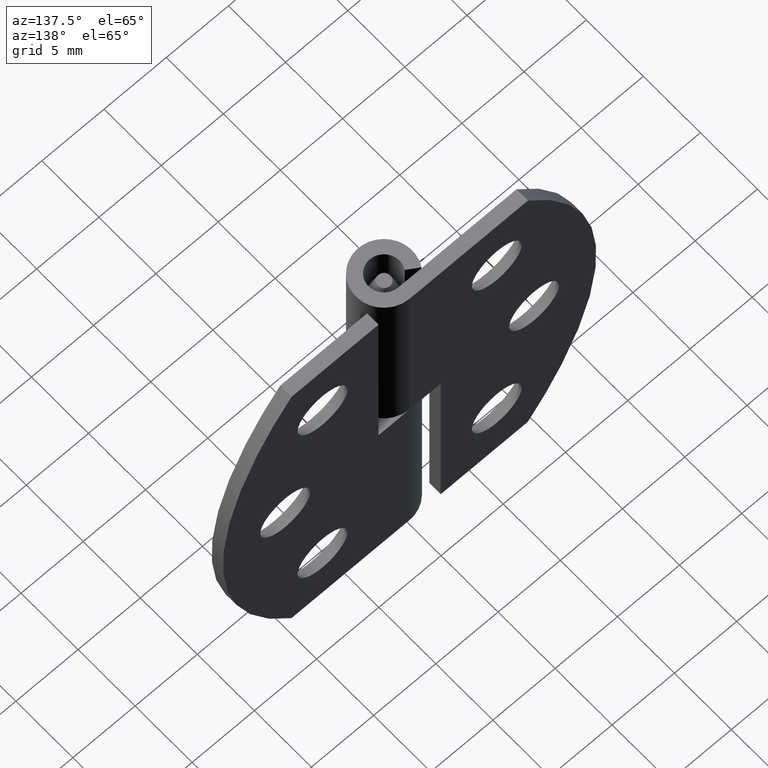
[diagram: clean part render]
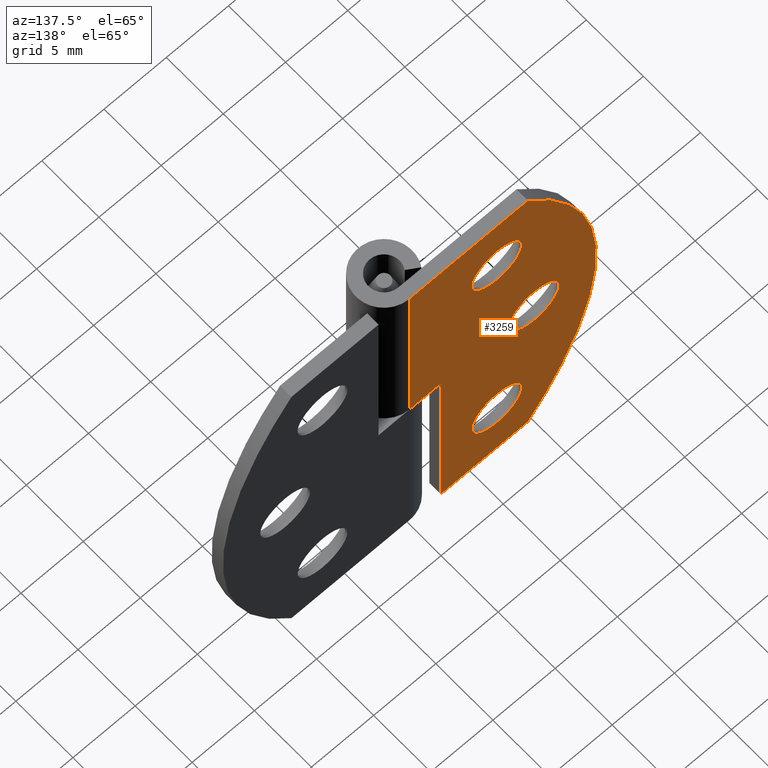
[diagram: same view with one face highlighted and labeled with its STEP entity id]
A machine part, auxiliary view. The second image highlights one B-rep face of the part: STEP entity #3259.
In plain terms, the highlighted face is a freeform B-spline surface patch.
Its self-contained STEP definition (entity closure, byte-faithful):
#2108=CARTESIAN_POINT('',(-5.013980947273408,2.250000000000000,5.736068469321533));
#2109=VERTEX_POINT('',#2108);
#2115=CARTESIAN_POINT('',(-6.999999999999800,2.250000000000000,3.500000000000100));
#2116=VERTEX_POINT('',#2115);
#2117=CARTESIAN_POINT('',(-5.013980947273408,2.250000000000000,5.736068469321533));
#2118=CARTESIAN_POINT('',(-4.999999999999801,2.250000000000000,5.618448239311921));
#2119=CARTESIAN_POINT('',(-4.999999999999800,2.250000000000000,5.500000000000100));
#2120=CARTESIAN_POINT('',(-4.999999999999801,2.250000000000000,3.500000000000100));
#2121=CARTESIAN_POINT('',(-6.999999999999800,2.250000000000000,3.500000000000100));
#2129=(BOUNDED_CURVE()B_SPLINE_CURVE(2,(#2117,#2118,#2119,#2120,#2121),.UNSPECIFIED.,.F.,.U.)B_SPLINE_CURVE_WITH_KNOTS((3,2,3),(0.229562473514297,0.250000000000000,0.500000000000000),.UNSPECIFIED.)CURVE()GEOMETRIC_REPRESENTATION_ITEM()RATIONAL_B_SPLINE_CURVE((0.956026754185245,0.976055948332069,1.0,0.707106781186548,1.0))REPRESENTATION_ITEM(''));
#2130=EDGE_CURVE('',#2109,#2116,#2129,.T.);
#2132=CARTESIAN_POINT('',(-8.996269596837500,2.250000000000000,5.377902920831751));
#2133=VERTEX_POINT('',#2132);
#2134=CARTESIAN_POINT('',(-6.999999999999800,2.250000000000000,3.500000000000100));
#2135=CARTESIAN_POINT('',(-8.881412133624934,2.250000000000000,3.500000000000100));
#2136=CARTESIAN_POINT('',(-8.996269596837500,2.249999999999999,5.377902920831751));
#2144=(BOUNDED_CURVE()B_SPLINE_CURVE(2,(#2134,#2135,#2136),.UNSPECIFIED.,.F.,.U.)B_SPLINE_CURVE_WITH_KNOTS((3,3),(0.500000000000000,0.739332962224919),.UNSPECIFIED.)CURVE()GEOMETRIC_REPRESENTATION_ITEM()RATIONAL_B_SPLINE_CURVE((1.0,0.719603993303141,0.976072041636661))REPRESENTATION_ITEM(''));
#2145=EDGE_CURVE('',#2116,#2133,#2144,.T.);
#2179=CARTESIAN_POINT('',(-6.999999999999800,2.250000000000000,7.500000000000100));
#2180=VERTEX_POINT('',#2179);
#2181=CARTESIAN_POINT('',(-8.996269596837500,2.250000000000000,5.377902920831752));
#2182=CARTESIAN_POINT('',(-8.999999999999799,2.250000000000000,5.438894473304011));
#2183=CARTESIAN_POINT('',(-8.999999999999799,2.250000000000000,5.500000000000100));
#2184=CARTESIAN_POINT('',(-8.999999999999799,2.250000000000000,7.500000000000099));
#2185=CARTESIAN_POINT('',(-6.999999999999800,2.250000000000000,7.500000000000100));
#2193=(BOUNDED_CURVE()B_SPLINE_CURVE(2,(#2181,#2182,#2183,#2184,#2185),.UNSPECIFIED.,.F.,.U.)B_SPLINE_CURVE_WITH_KNOTS((3,2,3),(0.739332962224917,0.750000000000000,1.0),.UNSPECIFIED.)CURVE()GEOMETRIC_REPRESENTATION_ITEM()RATIONAL_B_SPLINE_CURVE((0.976072041636658,0.987502787883406,1.0,0.707106781186548,1.0))REPRESENTATION_ITEM(''));
#2194=EDGE_CURVE('',#2133,#2180,#2193,.T.);
#2196=CARTESIAN_POINT('',(-6.999999999999800,2.250000000000000,7.500000000000100));
#2197=CARTESIAN_POINT('',(-5.223650948111324,2.250000000000000,7.500000000000099));
#2198=CARTESIAN_POINT('',(-5.013980947273408,2.250000000000000,5.736068469321533));
#2206=(BOUNDED_CURVE()B_SPLINE_CURVE(2,(#2196,#2197,#2198),.UNSPECIFIED.,.F.,.U.)B_SPLINE_CURVE_WITH_KNOTS((3,3),(0.0,0.229562473514297),.UNSPECIFIED.)CURVE()GEOMETRIC_REPRESENTATION_ITEM()RATIONAL_B_SPLINE_CURVE((1.0,0.731050832854479,0.956026754185245))REPRESENTATION_ITEM(''));
#2207=EDGE_CURVE('',#2180,#2109,#2206,.T.);
#2452=CARTESIAN_POINT('',(-5.013980947273408,2.250000000000000,25.736068469321442));
#2453=VERTEX_POINT('',#2452);
#2459=CARTESIAN_POINT('',(-6.999999999999800,2.250000000000000,23.500000000000000));
#2460=VERTEX_POINT('',#2459);
#2461=CARTESIAN_POINT('',(-5.013980947273408,2.250000000000000,25.736068469321442));
#2462=CARTESIAN_POINT('',(-4.999999999999800,2.250000000000000,25.618448239311821));
#2463=CARTESIAN_POINT('',(-4.999999999999800,2.250000000000000,25.500000000000000));
#2464=CARTESIAN_POINT('',(-4.999999999999801,2.250000000000000,23.500000000000004));
#2465=CARTESIAN_POINT('',(-6.999999999999800,2.250000000000000,23.500000000000000));
#2473=(BOUNDED_CURVE()B_SPLINE_CURVE(2,(#2461,#2462,#2463,#2464,#2465),.UNSPECIFIED.,.F.,.U.)B_SPLINE_CURVE_WITH_KNOTS((3,2,3),(0.229562473514297,0.250000000000000,0.500000000000000),.UNSPECIFIED.)CURVE()GEOMETRIC_REPRESENTATION_ITEM()RATIONAL_B_SPLINE_CURVE((0.956026754185244,0.976055948332068,1.0,0.707106781186548,1.0))REPRESENTATION_ITEM(''));
#2474=EDGE_CURVE('',#2453,#2460,#2473,.T.);
#2476=CARTESIAN_POINT('',(-8.996269596837500,2.250000000000000,25.377902920831652));
#2477=VERTEX_POINT('',#2476);
#2478=CARTESIAN_POINT('',(-6.999999999999800,2.250000000000000,23.500000000000000));
#2479=CARTESIAN_POINT('',(-8.881412133624934,2.250000000000000,23.500000000000000));
#2480=CARTESIAN_POINT('',(-8.996269596837500,2.250000000000000,25.377902920831655));
#2488=(BOUNDED_CURVE()B_SPLINE_CURVE(2,(#2478,#2479,#2480),.UNSPECIFIED.,.F.,.U.)B_SPLINE_CURVE_WITH_KNOTS((3,3),(0.500000000000000,0.739332962224919),.UNSPECIFIED.)CURVE()GEOMETRIC_REPRESENTATION_ITEM()RATIONAL_B_SPLINE_CURVE((1.0,0.719603993303141,0.976072041636661))REPRESENTATION_ITEM(''));
#2489=EDGE_CURVE('',#2460,#2477,#2488,.T.);
#2523=CARTESIAN_POINT('',(-6.999999999999800,2.250000000000000,27.500000000000000));
#2524=VERTEX_POINT('',#2523);
#2525=CARTESIAN_POINT('',(-8.996269596837500,2.250000000000000,25.377902920831655));
#2526=CARTESIAN_POINT('',(-8.999999999999799,2.250000000000000,25.438894473303915));
#2527=CARTESIAN_POINT('',(-8.999999999999799,2.250000000000000,25.500000000000000));
#2528=CARTESIAN_POINT('',(-8.999999999999799,2.250000000000000,27.500000000000004));
#2529=CARTESIAN_POINT('',(-6.999999999999800,2.250000000000000,27.500000000000000));
#2537=(BOUNDED_CURVE()B_SPLINE_CURVE(2,(#2525,#2526,#2527,#2528,#2529),.UNSPECIFIED.,.F.,.U.)B_SPLINE_CURVE_WITH_KNOTS((3,2,3),(0.739332962224917,0.750000000000000,1.0),.UNSPECIFIED.)CURVE()GEOMETRIC_REPRESENTATION_ITEM()RATIONAL_B_SPLINE_CURVE((0.976072041636658,0.987502787883406,1.0,0.707106781186548,1.0))REPRESENTATION_ITEM(''));
#2538=EDGE_CURVE('',#2477,#2524,#2537,.T.);
#2540=CARTESIAN_POINT('',(-6.999999999999800,2.250000000000000,27.500000000000000));
#2541=CARTESIAN_POINT('',(-5.223650948111331,2.250000000000000,27.500000000000004));
#2542=CARTESIAN_POINT('',(-5.013980947273408,2.250000000000000,25.736068469321442));
#2550=(BOUNDED_CURVE()B_SPLINE_CURVE(2,(#2540,#2541,#2542),.UNSPECIFIED.,.F.,.U.)B_SPLINE_CURVE_WITH_KNOTS((3,3),(0.0,0.229562473514297),.UNSPECIFIED.)CURVE()GEOMETRIC_REPRESENTATION_ITEM()RATIONAL_B_SPLINE_CURVE((1.0,0.731050832854479,0.956026754185244))REPRESENTATION_ITEM(''));
#2551=EDGE_CURVE('',#2524,#2453,#2550,.T.);
#2783=CARTESIAN_POINT('',(-11.996269596837500,2.250000000000000,15.622097079168350));
#2784=VERTEX_POINT('',#2783);
#2790=CARTESIAN_POINT('',(-9.999999999999799,2.250000000000000,17.500000000000000));
#2791=VERTEX_POINT('',#2790);
#2792=CARTESIAN_POINT('',(-9.999999999999799,2.250000000000000,17.500000000000000));
#2793=CARTESIAN_POINT('',(-11.881412133624911,2.250000000000000,17.500000000000000));
#2794=CARTESIAN_POINT('',(-11.996269596837498,2.250000000000000,15.622097079168348));
#2802=(BOUNDED_CURVE()B_SPLINE_CURVE(2,(#2792,#2793,#2794),.UNSPECIFIED.,.F.,.U.)B_SPLINE_CURVE_WITH_KNOTS((3,3),(0.500000000000000,0.739332962224916),.UNSPECIFIED.)CURVE()GEOMETRIC_REPRESENTATION_ITEM()RATIONAL_B_SPLINE_CURVE((1.0,0.719603993303143,0.976072041636656))REPRESENTATION_ITEM(''));
#2803=EDGE_CURVE('',#2791,#2784,#2802,.T.);
#2805=CARTESIAN_POINT('',(-8.013980947273407,2.250000000000000,15.263931530678560));
#2806=VERTEX_POINT('',#2805);
#2807=CARTESIAN_POINT('',(-8.013980947273407,2.250000000000000,15.263931530678564));
#2808=CARTESIAN_POINT('',(-7.999999999999799,2.250000000000000,15.381551760688176));
#2809=CARTESIAN_POINT('',(-7.999999999999799,2.250000000000000,15.500000000000000));
#2810=CARTESIAN_POINT('',(-7.999999999999800,2.250000000000000,17.499999999999996));
#2811=CARTESIAN_POINT('',(-9.999999999999799,2.250000000000000,17.500000000000000));
#2819=(BOUNDED_CURVE()B_SPLINE_CURVE(2,(#2807,#2808,#2809,#2810,#2811),.UNSPECIFIED.,.F.,.U.)B_SPLINE_CURVE_WITH_KNOTS((3,2,3),(0.229562473514297,0.250000000000000,0.500000000000000),.UNSPECIFIED.)CURVE()GEOMETRIC_REPRESENTATION_ITEM()RATIONAL_B_SPLINE_CURVE((0.956026754185245,0.976055948332069,1.0,0.707106781186548,1.0))REPRESENTATION_ITEM(''));
#2820=EDGE_CURVE('',#2806,#2791,#2819,.T.);
#2850=CARTESIAN_POINT('',(-9.999999999999799,2.250000000000000,13.500000000000000));
#2851=VERTEX_POINT('',#2850);
#2852=CARTESIAN_POINT('',(-9.999999999999799,2.250000000000000,13.500000000000000));
#2853=CARTESIAN_POINT('',(-8.223650948111329,2.249999999999999,13.500000000000002));
#2854=CARTESIAN_POINT('',(-8.013980947273407,2.250000000000000,15.263931530678569));
#2862=(BOUNDED_CURVE()B_SPLINE_CURVE(2,(#2852,#2853,#2854),.UNSPECIFIED.,.F.,.U.)B_SPLINE_CURVE_WITH_KNOTS((3,3),(0.0,0.229562473514297),.UNSPECIFIED.)CURVE()GEOMETRIC_REPRESENTATION_ITEM()RATIONAL_B_SPLINE_CURVE((1.0,0.731050832854479,0.956026754185244))REPRESENTATION_ITEM(''));
#2863=EDGE_CURVE('',#2851,#2806,#2862,.T.);
#2865=CARTESIAN_POINT('',(-11.996269596837502,2.250000000000000,15.622097079168345));
#2866=CARTESIAN_POINT('',(-11.999999999999803,2.250000000000000,15.561105526696094));
#2867=CARTESIAN_POINT('',(-11.999999999999799,2.250000000000000,15.500000000000000));
#2868=CARTESIAN_POINT('',(-11.999999999999799,2.250000000000000,13.500000000000000));
#2869=CARTESIAN_POINT('',(-9.999999999999799,2.250000000000000,13.500000000000000));
#2877=(BOUNDED_CURVE()B_SPLINE_CURVE(2,(#2865,#2866,#2867,#2868,#2869),.UNSPECIFIED.,.F.,.U.)B_SPLINE_CURVE_WITH_KNOTS((3,2,3),(0.739332962224917,0.750000000000000,1.0),.UNSPECIFIED.)CURVE()GEOMETRIC_REPRESENTATION_ITEM()RATIONAL_B_SPLINE_CURVE((0.976072041636658,0.987502787883405,1.0,0.707106781186548,1.0))REPRESENTATION_ITEM(''));
#2878=EDGE_CURVE('',#2784,#2851,#2877,.T.);
#2892=CARTESIAN_POINT('',(-2.500000000000000,2.249999999999975,0.0));
#2893=VERTEX_POINT('',#2892);
#2899=CARTESIAN_POINT('',(-2.500000000000000,2.249999999999975,15.500000000000000));
#2900=VERTEX_POINT('',#2899);
#2901=CARTESIAN_POINT('',(-2.500000000000000,2.249999999999975,0.0));
#2902=CARTESIAN_POINT('',(-2.500000000000000,2.249999999999975,15.500000000000000));
#2903=QUASI_UNIFORM_CURVE('',1,(#2901,#2902),.UNSPECIFIED.,.F.,.U.);
#2904=EDGE_CURVE('',#2893,#2900,#2903,.T.);
#2927=CARTESIAN_POINT('',(0.0,2.250000000000000,15.500000000000000));
#2928=VERTEX_POINT('',#2927);
#2929=CARTESIAN_POINT('',(-2.500000000000000,2.249999999999975,15.500000000000000));
#2930=CARTESIAN_POINT('',(0.0,2.250000000000000,15.500000000000000));
#2931=QUASI_UNIFORM_CURVE('',1,(#2929,#2930),.UNSPECIFIED.,.F.,.U.);
#2932=EDGE_CURVE('',#2900,#2928,#2931,.T.);
#3005=CARTESIAN_POINT('',(-9.500012757139610,2.249999999999975,30.999991999999899));
#3006=VERTEX_POINT('',#3005);
#3007=CARTESIAN_POINT('',(-9.500006261904460,2.249999999999975,0.0));
#3008=VERTEX_POINT('',#3007);
#3009=CARTESIAN_POINT('',(-9.500012757139571,2.249999999999975,30.999991999999860));
#3010=CARTESIAN_POINT('',(-22.084523911107979,2.249999999999974,15.499993363245061));
#3011=CARTESIAN_POINT('',(-9.500006261904460,2.249999999999975,0.0));
#3019=(BOUNDED_CURVE()B_SPLINE_CURVE(2,(#3009,#3010,#3011),.UNSPECIFIED.,.F.,.U.)CURVE()GEOMETRIC_REPRESENTATION_ITEM()QUASI_UNIFORM_CURVE()RATIONAL_B_SPLINE_CURVE((1.0,0.776340261890376,1.0))REPRESENTATION_ITEM(''));
#3020=EDGE_CURVE('',#3006,#3008,#3019,.T.);
#3064=CARTESIAN_POINT('',(-2.500000000000000,2.249999999999975,0.0));
#3065=CARTESIAN_POINT('',(-9.500006261904460,2.249999999999975,0.0));
#3066=QUASI_UNIFORM_CURVE('',1,(#3064,#3065),.UNSPECIFIED.,.F.,.U.);
#3067=EDGE_CURVE('',#2893,#3008,#3066,.T.);
#3077=CARTESIAN_POINT('',(1.377682E-016,2.250000000000000,30.999991999999899));
#3078=VERTEX_POINT('',#3077);
#3079=CARTESIAN_POINT('',(1.377682E-016,2.250000000000000,30.999991999999899));
#3080=CARTESIAN_POINT('',(-9.500012757139610,2.249999999999975,30.999991999999899));
#3081=QUASI_UNIFORM_CURVE('',1,(#3079,#3080),.UNSPECIFIED.,.F.,.U.);
#3082=EDGE_CURVE('',#3078,#3006,#3081,.T.);
#3170=CARTESIAN_POINT('',(1.377682E-016,2.250000000000000,30.999991999999899));
#3171=CARTESIAN_POINT('',(0.0,2.250000000000000,15.500000000000000));
#3172=QUASI_UNIFORM_CURVE('',1,(#3170,#3171),.UNSPECIFIED.,.F.,.U.);
#3173=EDGE_CURVE('',#3078,#2928,#3172,.T.);
#3228=CARTESIAN_POINT('',(-15.749255989007500,2.250000000000000,32.548442122327387));
#3229=CARTESIAN_POINT('',(-15.749255989007500,2.250000000000000,-1.548450399489008));
#3230=CARTESIAN_POINT('',(0.749250659560906,2.250000000000000,32.548442122327387));
#3231=CARTESIAN_POINT('',(0.749250659560906,2.250000000000000,-1.548450399489008));
#3232=B_SPLINE_SURFACE_WITH_KNOTS('',1,1,((#3228,#3230),(#3229,#3231)),.UNSPECIFIED.,.F.,.F.,.U.,(2,2),(2,2),(0.0,34.096892521816393),(0.0,16.498506648568402),.UNSPECIFIED.);
#3233=ORIENTED_EDGE('',*,*,#2932,.F.);
#3234=ORIENTED_EDGE('',*,*,#2904,.F.);
#3235=ORIENTED_EDGE('',*,*,#3067,.T.);
#3236=ORIENTED_EDGE('',*,*,#3020,.F.);
#3237=ORIENTED_EDGE('',*,*,#3082,.F.);
#3238=ORIENTED_EDGE('',*,*,#3173,.T.);
#3239=EDGE_LOOP('',(#3233,#3234,#3235,#3236,#3237,#3238));
#3240=FACE_OUTER_BOUND('',#3239,.T.);
#3241=ORIENTED_EDGE('',*,*,#2803,.T.);
#3242=ORIENTED_EDGE('',*,*,#2878,.T.);
#3243=ORIENTED_EDGE('',*,*,#2863,.T.);
#3244=ORIENTED_EDGE('',*,*,#2820,.T.);
#3245=EDGE_LOOP('',(#3241,#3242,#3243,#3244));
#3246=FACE_BOUND('',#3245,.T.);
#3247=ORIENTED_EDGE('',*,*,#2489,.F.);
#3248=ORIENTED_EDGE('',*,*,#2474,.F.);
#3249=ORIENTED_EDGE('',*,*,#2551,.F.);
#3250=ORIENTED_EDGE('',*,*,#2538,.F.);
#3251=EDGE_LOOP('',(#3247,#3248,#3249,#3250));
#3252=FACE_BOUND('',#3251,.T.);
#3253=ORIENTED_EDGE('',*,*,#2145,.F.);
#3254=ORIENTED_EDGE('',*,*,#2130,.F.);
#3255=ORIENTED_EDGE('',*,*,#2207,.F.);
#3256=ORIENTED_EDGE('',*,*,#2194,.F.);
#3257=EDGE_LOOP('',(#3253,#3254,#3255,#3256));
#3258=FACE_BOUND('',#3257,.T.);
#3259=ADVANCED_FACE('',(#3240,#3246,#3252,#3258),#3232,.F.);